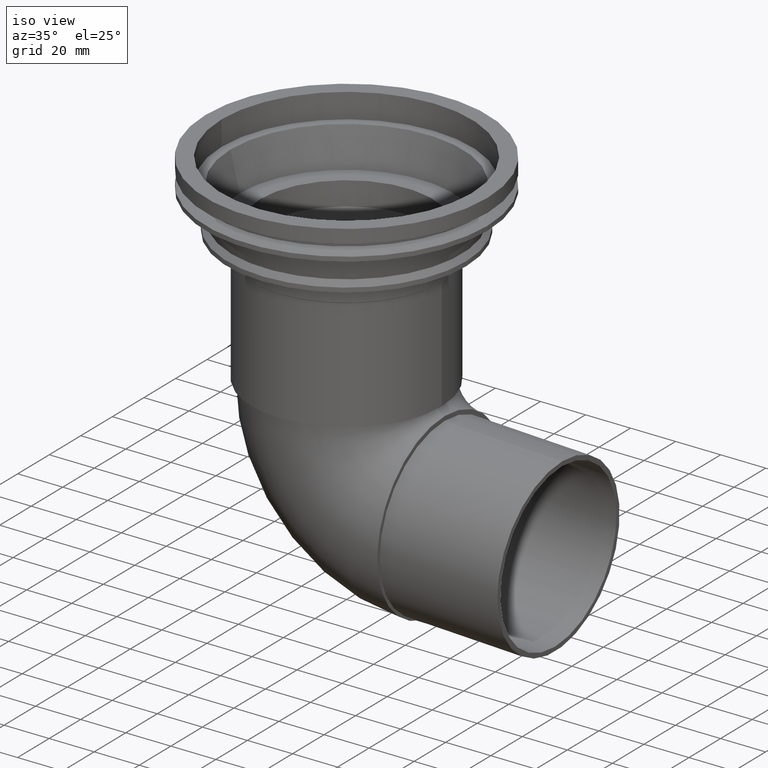
[diagram: clean part render]
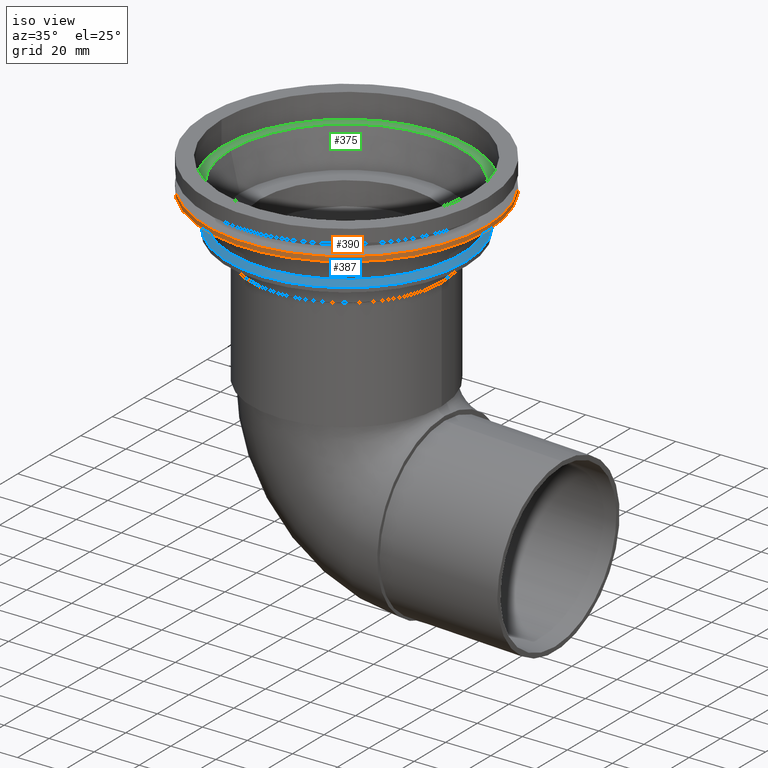
[diagram: same view with three faces highlighted in distinct colors, each labeled with its STEP entity id]
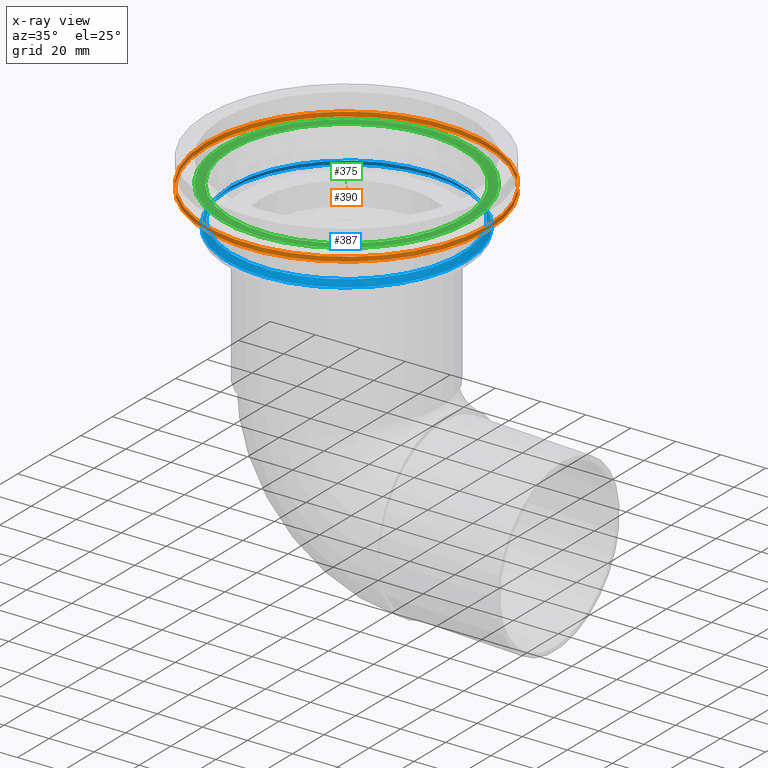
[diagram: x-ray of the same camera — body ghosted, the three highlighted faces saturated]
A machine part, iso view with three faces highlighted in distinct colors.
The next image is the same camera in x-ray (body ghosted, the three faces saturated) — at least one of them is partly hidden behind the body in this view.
Their STEP definitions:

[orange] entity #390 — the highlighted cylindrical surface (bore or boss wall) has radius 62.498 mm, axis along (0, 0, -1).
#27=CYLINDRICAL_SURFACE('',#460,62.498);
#85=ORIENTED_EDGE('',*,*,#137,.T.);
#86=ORIENTED_EDGE('',*,*,#136,.F.);
#136=EDGE_CURVE('',#171,#171,#206,.T.);
#137=EDGE_CURVE('',#172,#172,#207,.T.);
#171=VERTEX_POINT('',#694);
#172=VERTEX_POINT('',#697);
#206=CIRCLE('',#459,62.498);
#207=CIRCLE('',#461,62.498);
#260=EDGE_LOOP('',(#85));
#261=EDGE_LOOP('',(#86));
#330=FACE_BOUND('',#260,.T.);
#331=FACE_BOUND('',#261,.T.);
#390=ADVANCED_FACE('',(#330,#331),#27,.T.);
#459=AXIS2_PLACEMENT_3D('',#693,#572,#573);
#460=AXIS2_PLACEMENT_3D('',#695,#574,#575);
#461=AXIS2_PLACEMENT_3D('',#696,#576,#577);
#572=DIRECTION('',(0.,0.,-1.));
#573=DIRECTION('',(-1.,0.,0.));
#574=DIRECTION('',(0.,0.,-1.));
#575=DIRECTION('',(-1.,0.,0.));
#576=DIRECTION('',(0.,0.,-1.));
#577=DIRECTION('',(-1.,0.,0.));
#693=CARTESIAN_POINT('',(0.,0.,-13.184));
#694=CARTESIAN_POINT('',(-62.498,0.,-13.184));
#695=CARTESIAN_POINT('',(0.,0.,-5.));
#696=CARTESIAN_POINT('',(0.,0.,-11.184));
#697=CARTESIAN_POINT('',(-62.498,0.,-11.184));

[blue] entity #387 — the highlighted conical surface has half-angle 38.148 deg.
#79=ORIENTED_EDGE('',*,*,#134,.T.);
#80=ORIENTED_EDGE('',*,*,#133,.F.);
#133=EDGE_CURVE('',#168,#168,#203,.T.);
#134=EDGE_CURVE('',#169,#169,#204,.T.);
#168=VERTEX_POINT('',#685);
#169=VERTEX_POINT('',#688);
#203=CIRCLE('',#453,52.998);
#204=CIRCLE('',#455,51.065);
#254=EDGE_LOOP('',(#79));
#255=EDGE_LOOP('',(#80));
#324=FACE_BOUND('',#254,.T.);
#325=FACE_BOUND('',#255,.T.);
#366=CONICAL_SURFACE('',#454,52.998,0.665807706788415);
#387=ADVANCED_FACE('',(#324,#325),#366,.T.);
#453=AXIS2_PLACEMENT_3D('',#684,#560,#561);
#454=AXIS2_PLACEMENT_3D('',#686,#562,#563);
#455=AXIS2_PLACEMENT_3D('',#687,#564,#565);
#560=DIRECTION('',(0.,0.,-1.));
#561=DIRECTION('',(-1.,0.,0.));
#562=DIRECTION('',(0.,0.,-1.));
#563=DIRECTION('',(-1.,0.,0.));
#564=DIRECTION('',(0.,0.,-1.));
#565=DIRECTION('',(-1.,0.,0.));
#684=CARTESIAN_POINT('',(0.,0.,-28.));
#685=CARTESIAN_POINT('',(-52.998,0.,-28.));
#686=CARTESIAN_POINT('',(0.,0.,-28.));
#687=CARTESIAN_POINT('',(0.,0.,-25.539));
#688=CARTESIAN_POINT('',(-51.065,0.,-25.539));

[green] entity #375 — the highlighted planar face has unit normal (0, 0, 1).
#36=PLANE('',#430);
#55=ORIENTED_EDGE('',*,*,#122,.T.);
#56=ORIENTED_EDGE('',*,*,#121,.F.);
#121=EDGE_CURVE('',#156,#156,#191,.T.);
#122=EDGE_CURVE('',#157,#157,#192,.T.);
#156=VERTEX_POINT('',#649);
#157=VERTEX_POINT('',#652);
#191=CIRCLE('',#429,55.498);
#192=CIRCLE('',#431,51.498);
#230=EDGE_LOOP('',(#55));
#231=EDGE_LOOP('',(#56));
#300=FACE_BOUND('',#230,.T.);
#301=FACE_BOUND('',#231,.T.);
#375=ADVANCED_FACE('',(#300,#301),#36,.T.);
#429=AXIS2_PLACEMENT_3D('',#648,#512,#513);
#430=AXIS2_PLACEMENT_3D('',#650,#514,#515);
#431=AXIS2_PLACEMENT_3D('',#651,#516,#517);
#512=DIRECTION('',(0.,0.,-1.));
#513=DIRECTION('',(-1.,0.,0.));
#514=DIRECTION('',(0.,0.,1.));
#515=DIRECTION('',(1.,0.,0.));
#516=DIRECTION('',(0.,0.,-1.));
#517=DIRECTION('',(-1.,0.,0.));
#648=CARTESIAN_POINT('',(0.,0.,-11.));
#649=CARTESIAN_POINT('',(-55.498,0.,-11.));
#650=CARTESIAN_POINT('',(-55.498,0.,-11.));
#651=CARTESIAN_POINT('',(0.,0.,-11.));
#652=CARTESIAN_POINT('',(-51.498,0.,-11.));